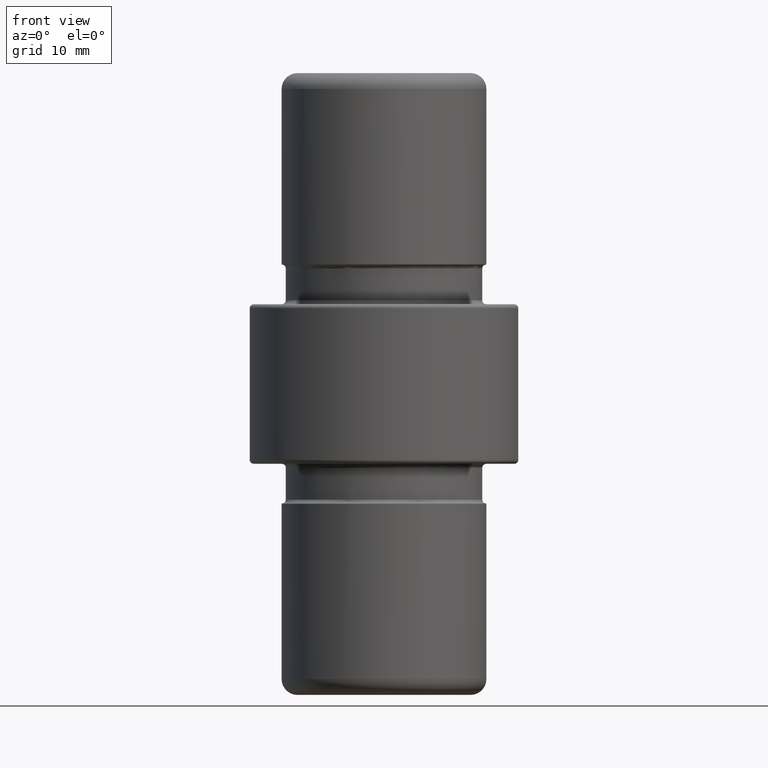
[diagram: clean part render]
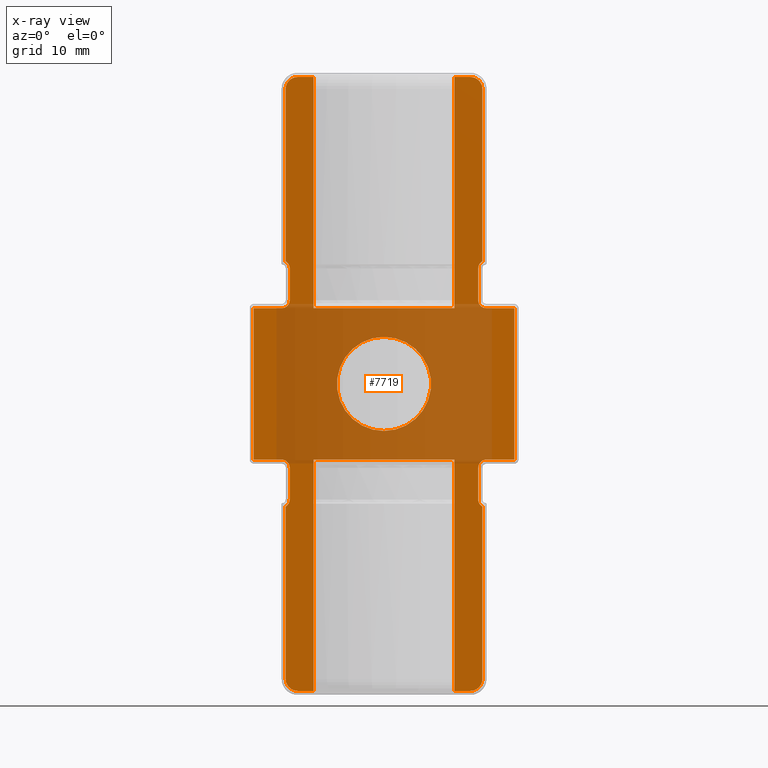
[diagram: x-ray — body ghosted, one internal face saturated and labeled with its STEP entity id]
A machine part, front view, then the same camera in x-ray: the body is ghosted and one INTERNAL B-rep face — a face not visible from any outside direction — is saturated and labeled: STEP entity #7719.
In plain terms, the highlighted planar face has unit normal (-0, 1, 0).
Its self-contained STEP definition (entity closure, byte-faithful):
#1 = EDGE_CURVE ( 'NONE', #120, #5513, #8050, .T. ) ;
#28 = VERTEX_POINT ( 'NONE', #3939 ) ;
#34 = DIRECTION ( 'NONE',  ( -0.000000000000000000, -1.000000000000000000, -0.000000000000000000 ) ) ;
#37 = CARTESIAN_POINT ( 'NONE',  ( -16.84933233098569971, 0.000000000000000000, -9.500000000000000000 ) ) ;
#62 = FACE_BOUND ( 'NONE', #3400, .T. ) ;
#77 = DIRECTION ( 'NONE',  ( 1.000000000000000000, 1.836970198721029688E-16, -0.000000000000000000 ) ) ;
#95 = CARTESIAN_POINT ( 'NONE',  ( 11.32770632754599660, 5.187487279834798235E-15, 38.42346631043297833 ) ) ;
#105 = CARTESIAN_POINT ( 'NONE',  ( -11.82635944855898558, 9.227051494001742720E-16, 10.00000000000000000 ) ) ;
#114 = CARTESIAN_POINT ( 'NONE',  ( -11.82635944855898202, 9.227051494001748636E-16, 10.49999999999999645 ) ) ;
#120 = VERTEX_POINT ( 'NONE', #8200 ) ;
#129 = VERTEX_POINT ( 'NONE', #5139 ) ;
#132 = EDGE_CURVE ( 'NONE', #129, #1827, #505, .T. ) ;
#155 = DIRECTION ( 'NONE',  ( -1.000000000000000000, -1.836970198721029688E-16, -0.000000000000000000 ) ) ;
#176 = CARTESIAN_POINT ( 'NONE',  ( -12.56573863816000802, 7.366857760101343353E-16, -9.525944670966111971 ) ) ;
#231 = ORIENTED_EDGE ( 'NONE', *, *, #1228, .T. ) ;
#286 = EDGE_CURVE ( 'NONE', #5851, #4348, #2631, .T. ) ;
#288 = CARTESIAN_POINT ( 'NONE',  ( -12.82751327523205909, 7.387961750067786748E-16, 9.500000000000000000 ) ) ;
#379 = CARTESIAN_POINT ( 'NONE',  ( -12.34503948960876762, 8.274251715921893212E-16, 10.00000000000000000 ) ) ;
#400 = EDGE_CURVE ( 'NONE', #5819, #5851, #9580, .T. ) ;
#412 = EDGE_CURVE ( 'NONE', #6214, #6734, #4355, .T. ) ;
#435 = CARTESIAN_POINT ( 'NONE',  ( 12.02237447391102343, 5.295673121770225717E-15, 9.885013749146752460 ) ) ;
#489 = VERTEX_POINT ( 'NONE', #6630 ) ;
#502 = LINE ( 'NONE', #1487, #4276 ) ;
#505 = B_SPLINE_CURVE_WITH_KNOTS ( 'NONE', 3,
 ( #688, #4344, #9719, #6682, #2865, #5881, #636, #2215 ),
 .UNSPECIFIED., .F., .F.,
 ( 4, 2, 2, 4 ),
 ( 3.469446951953614189E-18, 0.0003946217119678018816, 0.0007892434239356002938, 0.001578486847871197118 ),
 .UNSPECIFIED. ) ;
#510 = VECTOR ( 'NONE', #6872, 1000.000000000000000 ) ;
#515 = DIRECTION ( 'NONE',  ( 1.000000000000000000, 1.836970198721029688E-16, -0.000000000000000000 ) ) ;
#542 = CARTESIAN_POINT ( 'NONE',  ( -12.14707691400465528, 8.573676752678414412E-16, 37.75105812251798909 ) ) ;
#574 = CARTESIAN_POINT ( 'NONE',  ( -11.23935854233028842, 1.008921402915745847E-15, 38.46022153610800132 ) ) ;
#602 = ORIENTED_EDGE ( 'NONE', *, *, #5104, .T. ) ;
#624 = CARTESIAN_POINT ( 'NONE',  ( 11.82093666310629132, 5.266642973146254359E-15, -14.68042298348409957 ) ) ;
#630 = DIRECTION ( 'NONE',  ( 0.000000000000000000, 0.000000000000000000, -1.000000000000000000 ) ) ;
#636 = CARTESIAN_POINT ( 'NONE',  ( 12.55865299338266361, 5.402159264529006987E-15, -9.500000000000001776 ) ) ;
#688 = CARTESIAN_POINT ( 'NONE',  ( 11.82093666310625579, 5.266642973146247260E-15, -10.50000000000001776 ) ) ;
#805 = DIRECTION ( 'NONE',  ( 1.000000000000000000, 1.836970198721029688E-16, -0.000000000000000000 ) ) ;
#820 = CARTESIAN_POINT ( 'NONE',  ( -12.34503948960876407, 8.274251715921890254E-16, -37.19812953165480707 ) ) ;
#827 = VERTEX_POINT ( 'NONE', #3567 ) ;
#842 = CARTESIAN_POINT ( 'NONE',  ( 10.94341678214463442, 5.105445186135074839E-15, 38.50000000000000000 ) ) ;
#852 = CARTESIAN_POINT ( 'NONE',  ( 10.84435336938076588, 5.087247532431992333E-15, -38.50000000000000000 ) ) ;
#882 = DIRECTION ( 'NONE',  ( 1.000000000000000000, 1.836970198721029688E-16, 0.000000000000000000 ) ) ;
#888 = CARTESIAN_POINT ( 'NONE',  ( 12.03826662707112582, 5.302596582458411297E-15, -37.91406105640146507 ) ) ;
#971 = EDGE_CURVE ( 'NONE', #1737, #5344, #8889, .T. ) ;
#1096 = CARTESIAN_POINT ( 'NONE',  ( 12.56137338367252632, 5.443306909823021676E-15, 9.525807773505903242 ) ) ;
#1115 = CARTESIAN_POINT ( 'NONE',  ( -8.348652585896719103, 1.561549536059993372E-15, 9.500000000000000000 ) ) ;
#1134 = DIRECTION ( 'NONE',  ( 1.000000000000000000, 1.836970198721029688E-16, 0.000000000000000000 ) ) ;
#1184 = CARTESIAN_POINT ( 'NONE',  ( 16.34625339336203709, 6.097930170471603174E-15, 10.00000000000000000 ) ) ;
#1202 = CARTESIAN_POINT ( 'NONE',  ( -11.82635932629594322, 9.227051718595307736E-16, -14.49999999999999289 ) ) ;
#1205 = ORIENTED_EDGE ( 'NONE', *, *, #6367, .T. ) ;
#1228 = EDGE_CURVE ( 'NONE', #4498, #7017, #2537, .T. ) ;
#1366 = EDGE_CURVE ( 'NONE', #827, #3689, #7261, .T. ) ;
#1414 = ORIENTED_EDGE ( 'NONE', *, *, #4284, .T. ) ;
#1462 = CARTESIAN_POINT ( 'NONE',  ( -11.04082727738886582, 1.101804934473193733E-15, -38.49029282011349551 ) ) ;
#1485 = EDGE_CURVE ( 'NONE', #8409, #3112, #2328, .T. ) ;
#1487 = CARTESIAN_POINT ( 'NONE',  ( 8.843076387773654901, 4.719618914972128913E-15, -39.00000000000000000 ) ) ;
#1493 = CARTESIAN_POINT ( 'NONE',  ( -12.34503948960876762, 8.274251715921893212E-16, -37.00000000000000000 ) ) ;
#1511 = LINE ( 'NONE', #7031, #7186 ) ;
#1519 = VECTOR ( 'NONE', #6968, 1000.000000000000000 ) ;
#1555 = DIRECTION ( 'NONE',  ( 0.000000000000000000, 0.000000000000000000, -1.000000000000000000 ) ) ;
#1563 = CARTESIAN_POINT ( 'NONE',  ( -10.84435336938076588, 1.103096739641501484E-15, -38.50000000000000000 ) ) ;
#1594 = CARTESIAN_POINT ( 'NONE',  ( -16.34931191212645274, 9.185226081964420863E-17, 9.500000000000000000 ) ) ;
#1624 = CARTESIAN_POINT ( 'NONE',  ( 11.23935854233043408, 5.171030980251634555E-15, -38.46022153610797290 ) ) ;
#1634 = VECTOR ( 'NONE', #630, 1000.000000000000000 ) ;
#1650 = CARTESIAN_POINT ( 'NONE',  ( -12.34503948960878539, 8.274251715921857713E-16, -15.37621303987383037 ) ) ;
#1715 = PLANE ( 'NONE',  #1793 ) ;
#1721 = CARTESIAN_POINT ( 'NONE',  ( -11.95288557991027645, 8.581328193686945245E-16, 9.996053730219898625 ) ) ;
#1737 = VERTEX_POINT ( 'NONE', #6213 ) ;
#1787 = CARTESIAN_POINT ( 'NONE',  ( -12.34503948960876762, 8.274251715921893212E-16, 15.37621297546583499 ) ) ;
#1793 = AXIS2_PLACEMENT_3D ( 'NONE', #6215, #9297, #4676 ) ;
#1827 = VERTEX_POINT ( 'NONE', #4444 ) ;
#1846 = VECTOR ( 'NONE', #155, 1000.000000000000000 ) ;
#1882 = CARTESIAN_POINT ( 'NONE',  ( -11.92048647801271954, 8.756486130058074489E-16, -14.93247947804205822 ) ) ;
#1896 = CARTESIAN_POINT ( 'NONE',  ( 12.34503948960878184, 5.362919100481306271E-15, 15.37888091013495284 ) ) ;
#1949 = ORIENTED_EDGE ( 'NONE', *, *, #1485, .T. ) ;
#2050 = CARTESIAN_POINT ( 'NONE',  ( -16.34625339336203709, 9.241410160189053220E-17, -9.500000000000000000 ) ) ;
#2063 = ORIENTED_EDGE ( 'NONE', *, *, #7302, .T. ) ;
#2100 = CARTESIAN_POINT ( 'NONE',  ( -12.03826662707108675, 8.773558007089663435E-16, 37.91406105640152902 ) ) ;
#2108 = ORIENTED_EDGE ( 'NONE', *, *, #1366, .T. ) ;
#2139 = CARTESIAN_POINT ( 'NONE',  ( 12.34503948960876762, 5.362919100481304693E-15, -15.37903812353133048 ) ) ;
#2145 = LINE ( 'NONE', #2717, #4576 ) ;
#2152 = DIRECTION ( 'NONE',  ( -1.000000000000000000, -1.836970198721029688E-16, -0.000000000000000000 ) ) ;
#2191 = CARTESIAN_POINT ( 'NONE',  ( -8.843076387773654901, 1.470725357101365102E-15, -38.50000000000000000 ) ) ;
#2204 = CARTESIAN_POINT ( 'NONE',  ( 11.87017653939025941, 5.295759667921073000E-15, -14.85763162654438752 ) ) ;
#2212 = EDGE_CURVE ( 'NONE', #2744, #9574, #4763, .T. ) ;
#2215 = CARTESIAN_POINT ( 'NONE',  ( 12.82255779387073780, 5.450637789908608255E-15, -9.500000000000001776 ) ) ;
#2219 = CARTESIAN_POINT ( 'NONE',  ( 8.843076387773654901, 4.719618914972128913E-15, 9.500000000000000000 ) ) ;
#2222 = CARTESIAN_POINT ( 'NONE',  ( -12.34503948960877295, 8.274251715921885323E-16, 37.00000000000000000 ) ) ;
#2255 = CARTESIAN_POINT ( 'NONE',  ( 11.83578403412251134, 5.299874795469960530E-15, 38.13029582909724269 ) ) ;
#2257 = VERTEX_POINT ( 'NONE', #8100 ) ;
#2269 = CARTESIAN_POINT ( 'NONE',  ( -12.04344961929964342, 8.419300385703797728E-16, -37.92291959823978686 ) ) ;
#2328 = LINE ( 'NONE', #37, #2568 ) ;
#2340 = CARTESIAN_POINT ( 'NONE',  ( 12.34503948960876762, 5.362919100481304693E-15, 37.00000000000000000 ) ) ;
#2342 = VERTEX_POINT ( 'NONE', #9380 ) ;
#2351 = CARTESIAN_POINT ( 'NONE',  ( 12.29722961732077557, 5.309092255131945705E-15, -37.38811316196071743 ) ) ;
#2382 = VECTOR ( 'NONE', #7932, 1000.000000000000000 ) ;
#2390 = CARTESIAN_POINT ( 'NONE',  ( 11.82093666310625402, 5.266642973146247260E-15, 10.00000000000000000 ) ) ;
#2406 = CARTESIAN_POINT ( 'NONE',  ( -11.88521055177758790, 8.630497903386840490E-16, 14.84932256496422909 ) ) ;
#2438 = CARTESIAN_POINT ( 'NONE',  ( 12.34503948960876762, 5.362919100481304693E-15, -15.37903812353133048 ) ) ;
#2480 = LINE ( 'NONE', #9168, #3741 ) ;
#2512 = CARTESIAN_POINT ( 'NONE',  ( -11.82635932629594322, 9.227051718595307736E-16, -14.49999999999999289 ) ) ;
#2532 = ORIENTED_EDGE ( 'NONE', *, *, #3510, .T. ) ;
#2537 = LINE ( 'NONE', #1594, #510 ) ;
#2568 = VECTOR ( 'NONE', #805, 1000.000000000000000 ) ;
#2594 = EDGE_CURVE ( 'NONE', #7889, #827, #5835, .T. ) ;
#2615 = CARTESIAN_POINT ( 'NONE',  ( 11.82124216661149596, 5.266699093229719939E-15, 14.50000000000002132 ) ) ;
#2631 = LINE ( 'NONE', #9405, #4474 ) ;
#2640 = CARTESIAN_POINT ( 'NONE',  ( -12.05582141741196089, 8.507879879535951521E-16, -15.16123784198762436 ) ) ;
#2673 = LINE ( 'NONE', #2888, #8701 ) ;
#2717 = CARTESIAN_POINT ( 'NONE',  ( -8.843076387773654901, 1.470725357101365102E-15, -10.00000000000001599 ) ) ;
#2731 = CARTESIAN_POINT ( 'NONE',  ( 11.82124216661147109, 5.266699093229715994E-15, 10.50000000000001599 ) ) ;
#2730 = LINE ( 'NONE', #9411, #7092 ) ;
#2744 = VERTEX_POINT ( 'NONE', #7842 ) ;
#2762 = CARTESIAN_POINT ( 'NONE',  ( -11.82635932629594322, 9.227051718595307736E-16, -10.50000000000000000 ) ) ;
#2800 = VECTOR ( 'NONE', #1134, 1000.000000000000000 ) ;
#2810 = LINE ( 'NONE', #5253, #3387 ) ;
#2844 = CARTESIAN_POINT ( 'NONE',  ( -12.29722961732077025, 8.708601280354297660E-16, 37.38811316196074586 ) ) ;
#2865 = CARTESIAN_POINT ( 'NONE',  ( 12.02270341078740934, 5.295594209867348071E-15, -9.884112651660599269 ) ) ;
#2875 = CARTESIAN_POINT ( 'NONE',  ( -11.60016404371364729, 9.426425075581619373E-16, 38.31050610077146246 ) ) ;
#2882 = ORIENTED_EDGE ( 'NONE', *, *, #1, .T. ) ;
#2888 = CARTESIAN_POINT ( 'NONE',  ( -16.34625339336203709, 9.241410160189053220E-17, 10.00000000000000000 ) ) ;
#2917 = CARTESIAN_POINT ( 'NONE',  ( 12.18638736811393208, 5.333775178566316052E-15, -15.29313135559192283 ) ) ;
#2936 = EDGE_CURVE ( 'NONE', #8522, #1737, #4509, .T. ) ;
#2955 = CARTESIAN_POINT ( 'NONE',  ( -12.34503948960876762, 8.274251715921893212E-16, -37.00000000000000000 ) ) ;
#3004 = CARTESIAN_POINT ( 'NONE',  ( 10.84435336938076588, 5.087247532431992333E-15, 38.50000000000000000 ) ) ;
#3005 = VECTOR ( 'NONE', #77, 1000.000000000000000 ) ;
#3065 = CARTESIAN_POINT ( 'NONE',  ( 12.34503948960876407, 5.362919100481305482E-15, 37.19812953165480707 ) ) ;
#3067 = VERTEX_POINT ( 'NONE', #4606 ) ;
#3086 = VERTEX_POINT ( 'NONE', #7014 ) ;
#3112 = VERTEX_POINT ( 'NONE', #9218 ) ;
#3150 = VECTOR ( 'NONE', #2152, 1000.000000000000000 ) ;
#3170 = CARTESIAN_POINT ( 'NONE',  ( 11.97493497528827966, 5.325296923462063340E-15, -37.99123931512421137 ) ) ;
#3223 = CARTESIAN_POINT ( 'NONE',  ( 12.34503948960877295, 5.362919100481304693E-15, -37.00000000000000000 ) ) ;
#3229 = ORIENTED_EDGE ( 'NONE', *, *, #7751, .T. ) ;
#3234 = CARTESIAN_POINT ( 'NONE',  ( -12.56325973110938321, 7.873387635527557990E-16, 9.500000000000005329 ) ) ;
#3298 = VECTOR ( 'NONE', #8235, 1000.000000000000000 ) ;
#3314 = EDGE_CURVE ( 'NONE', #8606, #129, #3453, .T. ) ;
#3329 = VECTOR ( 'NONE', #9474, 1000.000000000000000 ) ;
#3345 = CARTESIAN_POINT ( 'NONE',  ( -8.348652585896719103, 1.561549536059993372E-15, -38.50000000000000000 ) ) ;
#3359 = CARTESIAN_POINT ( 'NONE',  ( 11.87034413660803445, 5.295658098159756420E-15, 14.85768937963660896 ) ) ;
#3378 = CARTESIAN_POINT ( 'NONE',  ( 12.34503948960876762, 5.362919100481304693E-15, 37.00000000000000000 ) ) ;
#3387 = VECTOR ( 'NONE', #7619, 1000.000000000000000 ) ;
#3400 = EDGE_LOOP ( 'NONE', ( #9430 ) ) ;
#3425 = CARTESIAN_POINT ( 'NONE',  ( -12.34503948960877295, 8.274251715921885323E-16, 37.00000000000000000 ) ) ;
#3435 = ORIENTED_EDGE ( 'NONE', *, *, #9407, .T. ) ;
#3439 = CARTESIAN_POINT ( 'NONE',  ( 12.31862532590847259, 5.398714815032023453E-15, 9.626059392481051802 ) ) ;
#3450 = DIRECTION ( 'NONE',  ( 0.000000000000000000, 0.000000000000000000, -1.000000000000000000 ) ) ;
#3453 = LINE ( 'NONE', #2390, #4151 ) ;
#3470 = CARTESIAN_POINT ( 'NONE',  ( 11.84777499783467647, 5.303409613250930499E-15, 10.23689767566536801 ) ) ;
#3492 = CARTESIAN_POINT ( 'NONE',  ( 11.82124216661147109, 5.266699093229715994E-15, 10.50000000000001599 ) ) ;
#3510 = EDGE_CURVE ( 'NONE', #3067, #4498, #9162, .T. ) ;
#3567 = CARTESIAN_POINT ( 'NONE',  ( -10.84435336938058647, 1.103096739641534616E-15, 38.50000000000000000 ) ) ;
#3604 = CARTESIAN_POINT ( 'NONE',  ( -11.97493497528822459, 8.546554597053112434E-16, 37.99123931512427532 ) ) ;
#3624 = CARTESIAN_POINT ( 'NONE',  ( 11.82124216661149596, 5.266699093229719939E-15, 14.50000000000002132 ) ) ;
#3656 = ORIENTED_EDGE ( 'NONE', *, *, #2936, .T. ) ;
#3689 = VERTEX_POINT ( 'NONE', #3425 ) ;
#3741 = VECTOR ( 'NONE', #7622, 1000.000000000000000 ) ;
#3757 = CARTESIAN_POINT ( 'NONE',  ( 0.000000000000000000, -2.112515728529184905E-16, 0.000000000000000000 ) ) ;
#3775 = CARTESIAN_POINT ( 'NONE',  ( -11.83578403412251134, 8.800775876974157302E-16, -38.13029582909724269 ) ) ;
#3840 = CARTESIAN_POINT ( 'NONE',  ( -11.82635932629594322, 9.227051718595307736E-16, -10.50000000000000000 ) ) ;
#3909 = CARTESIAN_POINT ( 'NONE',  ( -12.30415240920443765, 8.334498332595701003E-16, 9.608524622417297323 ) ) ;
#3939 = CARTESIAN_POINT ( 'NONE',  ( -8.843076387773654901, 1.470725357101365102E-15, -9.500000000000000000 ) ) ;
#3974 = CARTESIAN_POINT ( 'NONE',  ( -16.84933233098569971, 0.000000000000000000, -9.500000000000000000 ) ) ;
#4030 = CARTESIAN_POINT ( 'NONE',  ( -12.05582148165954948, 8.507879920915779480E-16, 15.16123777101950587 ) ) ;
#4037 = ORIENTED_EDGE ( 'NONE', *, *, #2594, .T. ) ;
#4118 = CARTESIAN_POINT ( 'NONE',  ( 11.94773341778545017, 5.321771677107012954E-15, 9.996441717516317382 ) ) ;
#4151 = VECTOR ( 'NONE', #9210, 1000.000000000000000 ) ;
#4242 = CARTESIAN_POINT ( 'NONE',  ( 12.82283400357469105, 5.450688528808084514E-15, 9.500000000000000000 ) ) ;
#4276 = VECTOR ( 'NONE', #5354, 1000.000000000000000 ) ;
#4284 = EDGE_CURVE ( 'NONE', #9298, #7765, #9031, .T. ) ;
#4318 = CIRCLE ( 'NONE', #5141, 5.899999999999996803 ) ;
#4344 = CARTESIAN_POINT ( 'NONE',  ( 11.82093666310621494, 5.266642973146239371E-15, -10.36804244063031710 ) ) ;
#4348 = VERTEX_POINT ( 'NONE', #3378 ) ;
#4355 = LINE ( 'NONE', #1115, #2382 ) ;
#4357 = CARTESIAN_POINT ( 'NONE',  ( -12.19313444586737027, 8.742747835750054387E-16, 37.66493053758035359 ) ) ;
#4444 = CARTESIAN_POINT ( 'NONE',  ( 12.82255779387073780, 5.450637789908608255E-15, -9.500000000000001776 ) ) ;
#4474 = VECTOR ( 'NONE', #5618, 1000.000000000000000 ) ;
#4480 = CARTESIAN_POINT ( 'NONE',  ( 11.23247722358772727, 5.113352972669560139E-15, 38.45225569363751816 ) ) ;
#4488 = EDGE_CURVE ( 'NONE', #3112, #6046, #5286, .T. ) ;
#4489 = EDGE_CURVE ( 'NONE', #2257, #7374, #8131, .T. ) ;
#4497 = CARTESIAN_POINT ( 'NONE',  ( -10.94341678214463442, 1.084899085938419176E-15, -38.50000000000000000 ) ) ;
#4498 = VERTEX_POINT ( 'NONE', #7592 ) ;
#4503 = ORIENTED_EDGE ( 'NONE', *, *, #4488, .T. ) ;
#4509 = LINE ( 'NONE', #5882, #3150 ) ;
#4549 = CARTESIAN_POINT ( 'NONE',  ( 11.04082727738886582, 5.078147448694183119E-15, 38.49029282011349551 ) ) ;
#4562 = CARTESIAN_POINT ( 'NONE',  ( 11.76742570335882299, 5.287178088612791655E-15, -38.19875620558220675 ) ) ;
#4576 = VECTOR ( 'NONE', #8762, 1000.000000000000000 ) ;
#4593 = CARTESIAN_POINT ( 'NONE',  ( 12.34503948960877295, 5.362919100481304693E-15, -37.00000000000000000 ) ) ;
#4606 = CARTESIAN_POINT ( 'NONE',  ( -11.82635944855898202, 9.227051494001748636E-16, 10.49999999999999645 ) ) ;
#4625 = CARTESIAN_POINT ( 'NONE',  ( 12.33531831412664737, 5.316089035225996959E-15, -37.19647229652363762 ) ) ;
#4676 = DIRECTION ( 'NONE',  ( -1.000000000000000000, -1.836970198721029688E-16, 0.000000000000000000 ) ) ;
#4682 = EDGE_CURVE ( 'NONE', #5163, #5163, #4318, .T. ) ;
#4763 = LINE ( 'NONE', #3345, #2800 ) ;
#4775 = CARTESIAN_POINT ( 'NONE',  ( -11.83826425234691193, 8.716736856381230454E-16, 14.67764585222535523 ) ) ;
#4788 = ORIENTED_EDGE ( 'NONE', *, *, #7459, .T. ) ;
#4829 = CARTESIAN_POINT ( 'NONE',  ( 11.82124216661154215, 5.266699093229730983E-15, 14.68043585912862525 ) ) ;
#4930 = VERTEX_POINT ( 'NONE', #2438 ) ;
#5014 = ORIENTED_EDGE ( 'NONE', *, *, #7610, .T. ) ;
#5055 = CARTESIAN_POINT ( 'NONE',  ( -11.76742570335873772, 8.927742945545879575E-16, 38.19875620558227070 ) ) ;
#5104 = EDGE_CURVE ( 'NONE', #7765, #5492, #9429, .T. ) ;
#5107 = CARTESIAN_POINT ( 'NONE',  ( 16.34625339336203709, 6.097930170471603174E-15, 9.500000000000000000 ) ) ;
#5139 = CARTESIAN_POINT ( 'NONE',  ( 11.82093666310625579, 5.266642973146247260E-15, -10.50000000000001776 ) ) ;
#5141 = AXIS2_PLACEMENT_3D ( 'NONE', #3757, #34, #9608 ) ;
#5163 = VERTEX_POINT ( 'NONE', #5847 ) ;
#5253 = CARTESIAN_POINT ( 'NONE',  ( -11.82635932629594322, 9.227051718595307736E-16, 10.00000000000000000 ) ) ;
#5286 = B_SPLINE_CURVE_WITH_KNOTS ( 'NONE', 3,
 ( #6739, #6774, #176, #6839, #7693, #6936, #8450, #3840 ),
 .UNSPECIFIED., .F., .F.,
 ( 4, 2, 2, 4 ),
 ( 0.000000000000000000, 0.0003907645425672621022, 0.0007815290851345242044, 0.001563058170269048409 ),
 .UNSPECIFIED. ) ;
#5301 = ORIENTED_EDGE ( 'NONE', *, *, #286, .T. ) ;
#5307 = CARTESIAN_POINT ( 'NONE',  ( -10.84896308409241250, 1.102249948786511365E-15, 38.50000000000000000 ) ) ;
#5313 = CARTESIAN_POINT ( 'NONE',  ( 12.34503948960876762, 5.362919100481304693E-15, -15.00000000000000711 ) ) ;
#5344 = VERTEX_POINT ( 'NONE', #3492 ) ;
#5354 = DIRECTION ( 'NONE',  ( 0.000000000000000000, 0.000000000000000000, -1.000000000000000000 ) ) ;
#5410 = VECTOR ( 'NONE', #3450, 1000.000000000000000 ) ;
#5415 = B_SPLINE_CURVE_WITH_KNOTS ( 'NONE', 3,
 ( #2139, #2917, #8190, #2204, #624, #9578 ),
 .UNSPECIFIED., .F., .F.,
 ( 4, 2, 4 ),
 ( 2.073536654878527230E-18, 0.0005398857903278183115, 0.001079771580655634671 ),
 .UNSPECIFIED. ) ;
#5422 = CARTESIAN_POINT ( 'NONE',  ( -12.02724069267976859, 8.843176903528204679E-16, 9.885154462436428702 ) ) ;
#5492 = VERTEX_POINT ( 'NONE', #6892 ) ;
#5495 = FACE_OUTER_BOUND ( 'NONE', #7590, .T. ) ;
#5513 = VERTEX_POINT ( 'NONE', #3223 ) ;
#5550 = CARTESIAN_POINT ( 'NONE',  ( 12.00860887572306446, 5.321056918688580563E-15, 15.08924679661668833 ) ) ;
#5618 = DIRECTION ( 'NONE',  ( -0.000000000000000000, -0.000000000000000000, 1.000000000000000000 ) ) ;
#5681 = EDGE_CURVE ( 'NONE', #3689, #8004, #6387, .T. ) ;
#5699 = CARTESIAN_POINT ( 'NONE',  ( 12.19406611942411267, 5.324401417211888711E-15, 15.28345743863416217 ) ) ;
#5706 = B_SPLINE_CURVE_WITH_KNOTS ( 'NONE', 3,
 ( #6177, #7057, #4030, #8548, #2406, #4775, #7023, #6210 ),
 .UNSPECIFIED., .F., .F.,
 ( 4, 2, 2, 4 ),
 ( 1.843143693225357538E-17, 0.0005387903794359260755, 0.0008081855691538811443, 0.001077580758871836322 ),
 .UNSPECIFIED. ) ;
#5774 = ORIENTED_EDGE ( 'NONE', *, *, #9653, .T. ) ;
#5796 = CARTESIAN_POINT ( 'NONE',  ( -10.84435336938058647, 1.103096739641534616E-15, 38.50000000000000000 ) ) ;
#5799 = VERTEX_POINT ( 'NONE', #6681 ) ;
#5819 = VERTEX_POINT ( 'NONE', #3624 ) ;
#5835 = LINE ( 'NONE', #5307, #1846 ) ;
#5847 = CARTESIAN_POINT ( 'NONE',  ( 0.000000000000000000, -2.112515728529184905E-16, -5.899999999999996803 ) ) ;
#5851 = VERTEX_POINT ( 'NONE', #8294 ) ;
#5881 = CARTESIAN_POINT ( 'NONE',  ( 12.30027626401263774, 5.346583515802218249E-15, -9.607708683565910235 ) ) ;
#5882 = CARTESIAN_POINT ( 'NONE',  ( 12.84967984512282158, 5.455620029896434479E-15, 9.500000000000000000 ) ) ;
#5883 = ORIENTED_EDGE ( 'NONE', *, *, #7611, .T. ) ;
#5951 = CARTESIAN_POINT ( 'NONE',  ( -12.33531831412664559, 8.638633479413773284E-16, 37.19647229652363762 ) ) ;
#5962 = CARTESIAN_POINT ( 'NONE',  ( 8.843076387773654901, 4.719618914972128913E-15, -9.500000000000000000 ) ) ;
#6046 = VERTEX_POINT ( 'NONE', #2762 ) ;
#6058 = CARTESIAN_POINT ( 'NONE',  ( -11.75855861926665114, 9.608050417213193765E-16, -38.19357721414428397 ) ) ;
#6083 = VECTOR ( 'NONE', #9235, 1000.000000000000000 ) ;
#6089 = CARTESIAN_POINT ( 'NONE',  ( -11.50934398402228176, 9.590988071413313363E-16, -38.34828589976977042 ) ) ;
#6119 = CARTESIAN_POINT ( 'NONE',  ( 11.04247875020536718, 5.123642574450498522E-15, -38.50000000000000711 ) ) ;
#6139 = ORIENTED_EDGE ( 'NONE', *, *, #7206, .T. ) ;
#6146 = EDGE_CURVE ( 'NONE', #2342, #3086, #2480, .T. ) ;
#6154 = CARTESIAN_POINT ( 'NONE',  ( 12.14707691400467660, 5.322584707899532945E-15, -37.75105812251793935 ) ) ;
#6177 = CARTESIAN_POINT ( 'NONE',  ( -12.34503948960876762, 8.274251715921893212E-16, 15.37621297546583499 ) ) ;
#6210 = CARTESIAN_POINT ( 'NONE',  ( -11.82635944855897492, 9.227051494001762441E-16, 14.49999999999999467 ) ) ;
#6213 = CARTESIAN_POINT ( 'NONE',  ( 12.82283400357469105, 5.450688528808084514E-15, 9.500000000000000000 ) ) ;
#6214 = VERTEX_POINT ( 'NONE', #2219 ) ;
#6215 = CARTESIAN_POINT ( 'NONE',  ( -16.84933233098569971, 0.000000000000000000, 10.00000000000000000 ) ) ;
#6224 = CARTESIAN_POINT ( 'NONE',  ( -11.82635944855897669, 9.227051494001746664E-16, 10.36786894297910955 ) ) ;
#6245 = ORIENTED_EDGE ( 'NONE', *, *, #7221, .T. ) ;
#6297 = LINE ( 'NONE', #7430, #8310 ) ;
#6349 = CARTESIAN_POINT ( 'NONE',  ( -16.34625339336203709, 9.241410160189053220E-17, 9.500000000000000000 ) ) ;
#6367 = EDGE_CURVE ( 'NONE', #6734, #7889, #9553, .T. ) ;
#6375 = LINE ( 'NONE', #5313, #3298 ) ;
#6377 = CARTESIAN_POINT ( 'NONE',  ( 11.82093666310628599, 5.266642973146252782E-15, -14.50000000000001776 ) ) ;
#6378 = ORIENTED_EDGE ( 'NONE', *, *, #5681, .T. ) ;
#6387 = LINE ( 'NONE', #379, #5410 ) ;
#6404 = CARTESIAN_POINT ( 'NONE',  ( 12.26572262263666246, 5.348348828392936151E-15, 15.33589745728379228 ) ) ;
#6511 = ORIENTED_EDGE ( 'NONE', *, *, #971, .T. ) ;
#6545 = ORIENTED_EDGE ( 'NONE', *, *, #7800, .T. ) ;
#6547 = LINE ( 'NONE', #3974, #3005 ) ;
#6630 = CARTESIAN_POINT ( 'NONE',  ( 8.843076387773654901, 4.719618914972128913E-15, -38.50000000000000000 ) ) ;
#6681 = CARTESIAN_POINT ( 'NONE',  ( -11.82635944855897492, 9.227051494001762441E-16, 14.49999999999999467 ) ) ;
#6682 = CARTESIAN_POINT ( 'NONE',  ( 11.94728949952203401, 5.321774609567546109E-15, -9.996644994738145940 ) ) ;
#6724 = CARTESIAN_POINT ( 'NONE',  ( -12.26840018062360294, 8.604486924018019515E-16, 37.48333772867023583 ) ) ;
#6729 = EDGE_CURVE ( 'NONE', #1827, #2342, #2730, .T. ) ;
#6734 = VERTEX_POINT ( 'NONE', #7210 ) ;
#6739 = CARTESIAN_POINT ( 'NONE',  ( -12.82751316267203734, 7.387961956837192452E-16, -9.500000000000000000 ) ) ;
#6773 = CARTESIAN_POINT ( 'NONE',  ( -12.30520043914433437, 8.535944526017852624E-16, -37.39500339352397162 ) ) ;
#6774 = CARTESIAN_POINT ( 'NONE',  ( -12.69538371994902981, 7.630679805492967277E-16, -9.499999999999847233 ) ) ;
#6789 = CARTESIAN_POINT ( 'NONE',  ( 12.04344961929964342, 5.338022344596995698E-15, 37.92291959823978686 ) ) ;
#6838 = CARTESIAN_POINT ( 'NONE',  ( -11.59549757966935957, 9.907588687525886047E-16, -38.30227765311577315 ) ) ;
#6839 = CARTESIAN_POINT ( 'NONE',  ( -12.32342937538356331, 7.811972654695718723E-16, -9.626139212542208057 ) ) ;
#6872 = DIRECTION ( 'NONE',  ( -1.000000000000000000, -1.836970198721029688E-16, -0.000000000000000000 ) ) ;
#6877 = EDGE_CURVE ( 'NONE', #5513, #4930, #6375, .T. ) ;
#6889 = CARTESIAN_POINT ( 'NONE',  ( 11.75855861926665114, 5.219147341446056292E-15, 38.19357721414428397 ) ) ;
#6892 = CARTESIAN_POINT ( 'NONE',  ( -12.34503948960876762, 8.274251715921893212E-16, -37.00000000000000000 ) ) ;
#6902 = CARTESIAN_POINT ( 'NONE',  ( 12.34503948960877651, 5.362919100481306271E-15, -37.09906398212305589 ) ) ;
#6936 = CARTESIAN_POINT ( 'NONE',  ( -11.93529363919648745, 9.013010467660509935E-16, -9.976744504734819330 ) ) ;
#6957 = B_SPLINE_CURVE_WITH_KNOTS ( 'NONE', 3,
 ( #1493, #820, #6773, #8220, #2269, #3775, #6058, #6838, #6089, #8284, #9040, #1462, #4497, #1563 ),
 .UNSPECIFIED., .F., .F.,
 ( 4, 2, 2, 2, 2, 2, 4 ),
 ( 0.000000000000000000, 0.0005907640857441630962, 0.001181528171488326192, 0.001476910214360407795, 0.001772292257232489180, 0.002067674300104570782, 0.002363056342976652385 ),
 .UNSPECIFIED. ) ;
#6968 = DIRECTION ( 'NONE',  ( -1.000000000000000000, -1.836970198721029688E-16, -0.000000000000000000 ) ) ;
#6983 = DIRECTION ( 'NONE',  ( -0.000000000000000000, -0.000000000000000000, 1.000000000000000000 ) ) ;
#7014 = CARTESIAN_POINT ( 'NONE',  ( 16.34625339336203709, 6.097930170471603174E-15, -9.500000000000000000 ) ) ;
#7017 = VERTEX_POINT ( 'NONE', #6349 ) ;
#7023 = CARTESIAN_POINT ( 'NONE',  ( -11.82635944855897492, 9.227051494001762441E-16, 14.58983688731875539 ) ) ;
#7031 = CARTESIAN_POINT ( 'NONE',  ( 10.84896308409241250, 5.088094323286982452E-15, -38.50000000000000000 ) ) ;
#7057 = CARTESIAN_POINT ( 'NONE',  ( -12.18756876850595283, 8.563520737758882682E-16, 15.28970253917466238 ) ) ;
#7066 = ORIENTED_EDGE ( 'NONE', *, *, #3314, .T. ) ;
#7092 = VECTOR ( 'NONE', #515, 1000.000000000000000 ) ;
#7129 = LINE ( 'NONE', #8938, #3329 ) ;
#7182 = B_SPLINE_CURVE_WITH_KNOTS ( 'NONE', 3,
 ( #2340, #3065, #9792, #8335, #6789, #2255, #6889, #7612, #9027, #95, #4480, #4549, #842, #3004 ),
 .UNSPECIFIED., .F., .F.,
 ( 4, 2, 2, 2, 2, 2, 4 ),
 ( 0.000000000000000000, 0.0005907640857441630962, 0.001181528171488326192, 0.001476910214360407795, 0.001772292257232489180, 0.002067674300104570782, 0.002363056342976652385 ),
 .UNSPECIFIED. ) ;
#7186 = VECTOR ( 'NONE', #882, 1000.000000000000000 ) ;
#7189 = CARTESIAN_POINT ( 'NONE',  ( 12.69083060994647205, 5.426439898785576143E-15, 9.500000000000001776 ) ) ;
#7206 = EDGE_CURVE ( 'NONE', #7017, #8409, #2673, .T. ) ;
#7210 = CARTESIAN_POINT ( 'NONE',  ( -8.843076387773654901, 1.470725357101365102E-15, 9.500000000000000000 ) ) ;
#7221 = EDGE_CURVE ( 'NONE', #4930, #8606, #5415, .T. ) ;
#7261 = B_SPLINE_CURVE_WITH_KNOTS ( 'NONE', 3,
 ( #5796, #7495, #574, #2875, #5055, #3604, #2100, #542, #4357, #6724, #2844, #5951, #9654, #2222 ),
 .UNSPECIFIED., .F., .F.,
 ( 4, 2, 2, 2, 2, 2, 4 ),
 ( 0.000000000000000000, 0.0005907298640423070107, 0.001181459728084614021, 0.001476824660105758094, 0.001772189592126902601, 0.002067554524148046673, 0.002362919456169191180 ),
 .UNSPECIFIED. ) ;
#7262 = CARTESIAN_POINT ( 'NONE',  ( -12.34503948960878539, 8.274251715921857713E-16, -15.37621303987383037 ) ) ;
#7302 = EDGE_CURVE ( 'NONE', #5492, #2744, #6957, .T. ) ;
#7329 = DIRECTION ( 'NONE',  ( -0.000000000000000000, -0.000000000000000000, 1.000000000000000000 ) ) ;
#7359 = VERTEX_POINT ( 'NONE', #5962 ) ;
#7374 = VERTEX_POINT ( 'NONE', #7471 ) ;
#7430 = CARTESIAN_POINT ( 'NONE',  ( 8.843076387773654901, 4.719618914972128913E-15, 10.00000000000000000 ) ) ;
#7459 = EDGE_CURVE ( 'NONE', #28, #7359, #6547, .T. ) ;
#7471 = CARTESIAN_POINT ( 'NONE',  ( 8.843076387773654901, 4.719618914972128913E-15, 38.50000000000000000 ) ) ;
#7495 = CARTESIAN_POINT ( 'NONE',  ( -11.04247875020521263, 1.066701697623026653E-15, 38.50000000000003553 ) ) ;
#7538 = ORIENTED_EDGE ( 'NONE', *, *, #6729, .T. ) ;
#7568 = EDGE_CURVE ( 'NONE', #5344, #5819, #7129, .T. ) ;
#7590 = EDGE_LOOP ( 'NONE', ( #5774, #3229, #2532, #231, #6139, #1949, #4503, #9422, #1414, #602, #2063, #9119, #3435, #4788, #5014, #6545, #2882, #9707, #6245, #7066, #9176, #7538, #9457, #7797, #3656, #6511, #7878, #8023, #5301, #7707, #9241, #5883, #7808, #1205, #4037, #2108, #6378 ) ) ;
#7592 = CARTESIAN_POINT ( 'NONE',  ( -12.82751327523205909, 7.387961750067786748E-16, 9.500000000000000000 ) ) ;
#7610 = EDGE_CURVE ( 'NONE', #7359, #489, #502, .T. ) ;
#7611 = EDGE_CURVE ( 'NONE', #7374, #6214, #6297, .T. ) ;
#7612 = CARTESIAN_POINT ( 'NONE',  ( 11.59549757966935957, 5.189193514414787064E-15, 38.30227765311577315 ) ) ;
#7619 = DIRECTION ( 'NONE',  ( 0.000000000000000000, 0.000000000000000000, -1.000000000000000000 ) ) ;
#7622 = DIRECTION ( 'NONE',  ( 1.000000000000000000, 1.836970198721029688E-16, -0.000000000000000000 ) ) ;
#7693 = CARTESIAN_POINT ( 'NONE',  ( -12.21242912676136250, 8.503920835995798241E-16, -9.700286607830799213 ) ) ;
#7707 = ORIENTED_EDGE ( 'NONE', *, *, #9591, .T. ) ;
#7712 = EDGE_CURVE ( 'NONE', #6046, #9298, #2810, .T. ) ;
#7718 = CARTESIAN_POINT ( 'NONE',  ( -8.843076387773654901, 1.470725357101365102E-15, 38.50000000000000000 ) ) ;
#7719 = ADVANCED_FACE ( 'NONE', ( #5495, #62 ), #1715, .F. ) ;
#7724 = CARTESIAN_POINT ( 'NONE',  ( 12.19313444586739514, 5.305677599592370624E-15, -37.66493053758033227 ) ) ;
#7751 = EDGE_CURVE ( 'NONE', #5799, #3067, #9768, .T. ) ;
#7752 = CARTESIAN_POINT ( 'NONE',  ( 11.60016404371375209, 5.237309875609210378E-15, -38.31050610077140561 ) ) ;
#7765 = VERTEX_POINT ( 'NONE', #1650 ) ;
#7796 = VECTOR ( 'NONE', #7329, 1000.000000000000000 ) ;
#7797 = ORIENTED_EDGE ( 'NONE', *, *, #9450, .T. ) ;
#7800 = EDGE_CURVE ( 'NONE', #489, #120, #1511, .T. ) ;
#7808 = ORIENTED_EDGE ( 'NONE', *, *, #412, .T. ) ;
#7842 = CARTESIAN_POINT ( 'NONE',  ( -10.84435336938076588, 1.103096739641501484E-15, -38.50000000000000000 ) ) ;
#7878 = ORIENTED_EDGE ( 'NONE', *, *, #7568, .T. ) ;
#7889 = VERTEX_POINT ( 'NONE', #7718 ) ;
#7913 = CARTESIAN_POINT ( 'NONE',  ( -11.82635932629593789, 9.227051718595319569E-16, -14.58983689873288725 ) ) ;
#7932 = DIRECTION ( 'NONE',  ( -1.000000000000000000, -1.836970198721029688E-16, -0.000000000000000000 ) ) ;
#7964 = CARTESIAN_POINT ( 'NONE',  ( 12.06547642274705723, 5.300779873146055531E-15, 15.16040177002375700 ) ) ;
#8004 = VERTEX_POINT ( 'NONE', #1787 ) ;
#8023 = ORIENTED_EDGE ( 'NONE', *, *, #400, .T. ) ;
#8041 = LINE ( 'NONE', #1184, #7796 ) ;
#8050 = B_SPLINE_CURVE_WITH_KNOTS ( 'NONE', 3,
 ( #852, #6119, #1624, #7752, #4562, #3170, #888, #6154, #7724, #8414, #2351, #4625, #6902, #4593 ),
 .UNSPECIFIED., .F., .F.,
 ( 4, 2, 2, 2, 2, 2, 4 ),
 ( 0.000000000000000000, 0.0005907298640422561616, 0.001181459728084512323, 0.001476824660105640350, 0.001772189592126768593, 0.002067554524147896620, 0.002362919456169024646 ),
 .UNSPECIFIED. ) ;
#8100 = CARTESIAN_POINT ( 'NONE',  ( 10.84435336938076588, 5.087247532431992333E-15, 38.50000000000000000 ) ) ;
#8131 = LINE ( 'NONE', #8488, #1519 ) ;
#8163 = DIRECTION ( 'NONE',  ( 0.000000000000000000, 0.000000000000000000, -1.000000000000000000 ) ) ;
#8190 = CARTESIAN_POINT ( 'NONE',  ( 12.05342368482153859, 5.329421622436869665E-15, -15.16508524148815340 ) ) ;
#8200 = CARTESIAN_POINT ( 'NONE',  ( 10.84435336938076588, 5.087247532431992333E-15, -38.50000000000000000 ) ) ;
#8220 = CARTESIAN_POINT ( 'NONE',  ( -12.15530921721592073, 8.811290233750219306E-16, -37.75573469356302780 ) ) ;
#8235 = DIRECTION ( 'NONE',  ( -0.000000000000000000, -0.000000000000000000, 1.000000000000000000 ) ) ;
#8284 = CARTESIAN_POINT ( 'NONE',  ( -11.32770632754599660, 9.924651033325768421E-16, -38.42346631043297833 ) ) ;
#8294 = CARTESIAN_POINT ( 'NONE',  ( 12.34503948960878184, 5.362919100481306271E-15, 15.37888091013495284 ) ) ;
#8310 = VECTOR ( 'NONE', #1555, 1000.000000000000000 ) ;
#8335 = CARTESIAN_POINT ( 'NONE',  ( 12.15530921721592073, 5.298823359792353442E-15, 37.75573469356302780 ) ) ;
#8409 = VERTEX_POINT ( 'NONE', #2050 ) ;
#8414 = CARTESIAN_POINT ( 'NONE',  ( 12.26840018062361359, 5.319503690765572040E-15, -37.48333772867020031 ) ) ;
#8448 = CARTESIAN_POINT ( 'NONE',  ( -11.85240579394385563, 8.765906566081127671E-16, 10.23821246010133024 ) ) ;
#8450 = CARTESIAN_POINT ( 'NONE',  ( -11.82635932629594322, 9.227051718595311680E-16, -10.23573257595477948 ) ) ;
#8488 = CARTESIAN_POINT ( 'NONE',  ( 8.348652585896719103, 4.628794736013500051E-15, 38.50000000000000000 ) ) ;
#8522 = VERTEX_POINT ( 'NONE', #5107 ) ;
#8542 = CARTESIAN_POINT ( 'NONE',  ( -8.843076387773654901, 1.470725357101365102E-15, 10.00000000000000000 ) ) ;
#8548 = CARTESIAN_POINT ( 'NONE',  ( -11.92048657604950179, 8.756486109368161003E-16, 14.93247942696251052 ) ) ;
#8606 = VERTEX_POINT ( 'NONE', #6377 ) ;
#8647 = CARTESIAN_POINT ( 'NONE',  ( -12.18756873662201734, 8.563520796328720449E-16, -15.28970261428489863 ) ) ;
#8701 = VECTOR ( 'NONE', #8163, 1000.000000000000000 ) ;
#8715 = CARTESIAN_POINT ( 'NONE',  ( 12.20656388994535568, 5.329508168587717736E-15, 9.701047439012819851 ) ) ;
#8718 = CARTESIAN_POINT ( 'NONE',  ( -11.83826413317098059, 8.716736867741262349E-16, -14.67764587452371217 ) ) ;
#8762 = DIRECTION ( 'NONE',  ( -0.000000000000000000, -0.000000000000000000, 1.000000000000000000 ) ) ;
#8889 = B_SPLINE_CURVE_WITH_KNOTS ( 'NONE', 3,
 ( #4242, #7189, #1096, #3439, #8715, #435, #4118, #3470, #9544, #2731 ),
 .UNSPECIFIED., .F., .F.,
 ( 4, 2, 2, 2, 4 ),
 ( 0.000000000000000000, 0.0003956239777921370291, 0.0007912479555842740582, 0.001186871933376411033, 0.001582495911168548116 ),
 .UNSPECIFIED. ) ;
#8938 = CARTESIAN_POINT ( 'NONE',  ( 11.82124216661149774, 5.266699093229720728E-15, 10.00000000000000000 ) ) ;
#8960 = VECTOR ( 'NONE', #6983, 1000.000000000000000 ) ;
#9027 = CARTESIAN_POINT ( 'NONE',  ( 11.50934398402228176, 5.220853576026045121E-15, 38.34828589976977042 ) ) ;
#9031 = B_SPLINE_CURVE_WITH_KNOTS ( 'NONE', 3,
 ( #1202, #7913, #8718, #9454, #1882, #2640, #8647, #7262 ),
 .UNSPECIFIED., .F., .F.,
 ( 4, 2, 2, 4 ),
 ( 1.925929944387235853E-34, 0.0002656835411109266932, 0.0005313670822218533865, 0.001062734164443711543 ),
 .UNSPECIFIED. ) ;
#9040 = CARTESIAN_POINT ( 'NONE',  ( -11.23247722358772727, 1.066599410497814938E-15, -38.45225569363751816 ) ) ;
#9119 = ORIENTED_EDGE ( 'NONE', *, *, #2212, .T. ) ;
#9162 = B_SPLINE_CURVE_WITH_KNOTS ( 'NONE', 3,
 ( #114, #6224, #8448, #1721, #5422, #3909, #3234, #288 ),
 .UNSPECIFIED., .F., .F.,
 ( 4, 2, 2, 4 ),
 ( 0.000000000000000000, 0.0003907642362675933681, 0.0007815284725351867362, 0.001563056945070373472 ),
 .UNSPECIFIED. ) ;
#9168 = CARTESIAN_POINT ( 'NONE',  ( -16.84933233098569971, 0.000000000000000000, -9.500000000000000000 ) ) ;
#9176 = ORIENTED_EDGE ( 'NONE', *, *, #132, .T. ) ;
#9210 = DIRECTION ( 'NONE',  ( -0.000000000000000000, -0.000000000000000000, 1.000000000000000000 ) ) ;
#9218 = CARTESIAN_POINT ( 'NONE',  ( -12.82751316267203734, 7.387961956837192452E-16, -9.500000000000000000 ) ) ;
#9235 = DIRECTION ( 'NONE',  ( 0.000000000000000000, 0.000000000000000000, -1.000000000000000000 ) ) ;
#9241 = ORIENTED_EDGE ( 'NONE', *, *, #4489, .T. ) ;
#9297 = DIRECTION ( 'NONE',  ( -1.836970198721029688E-16, 1.000000000000000000, 0.000000000000000000 ) ) ;
#9298 = VERTEX_POINT ( 'NONE', #2512 ) ;
#9380 = CARTESIAN_POINT ( 'NONE',  ( 12.82471248321559187, 5.451033599920008608E-15, -9.500000000000000000 ) ) ;
#9405 = CARTESIAN_POINT ( 'NONE',  ( 12.34503948960876585, 5.362919100481304693E-15, 10.00000000000000000 ) ) ;
#9407 = EDGE_CURVE ( 'NONE', #9574, #28, #2145, .T. ) ;
#9411 = CARTESIAN_POINT ( 'NONE',  ( -16.84933233098569971, 0.000000000000000000, -9.500000000000000000 ) ) ;
#9422 = ORIENTED_EDGE ( 'NONE', *, *, #7712, .T. ) ;
#9429 = LINE ( 'NONE', #2955, #1634 ) ;
#9430 = ORIENTED_EDGE ( 'NONE', *, *, #4682, .F. ) ;
#9450 = EDGE_CURVE ( 'NONE', #3086, #8522, #8041, .T. ) ;
#9454 = CARTESIAN_POINT ( 'NONE',  ( -11.88521044496988388, 8.630497892026805637E-16, -14.84932260796807668 ) ) ;
#9457 = ORIENTED_EDGE ( 'NONE', *, *, #6146, .T. ) ;
#9474 = DIRECTION ( 'NONE',  ( -0.000000000000000000, -0.000000000000000000, 1.000000000000000000 ) ) ;
#9544 = CARTESIAN_POINT ( 'NONE',  ( 11.82124216661147109, 5.266699093229715206E-15, 10.36799141622602249 ) ) ;
#9553 = LINE ( 'NONE', #8542, #8960 ) ;
#9574 = VERTEX_POINT ( 'NONE', #2191 ) ;
#9578 = CARTESIAN_POINT ( 'NONE',  ( 11.82093666310628599, 5.266642973146252782E-15, -14.50000000000001776 ) ) ;
#9580 = B_SPLINE_CURVE_WITH_KNOTS ( 'NONE', 3,
 ( #2615, #4829, #3359, #5550, #7964, #5699, #6404, #1896 ),
 .UNSPECIFIED., .F., .F.,
 ( 4, 2, 2, 4 ),
 ( 3.469446951953614189E-18, 0.0005395987464666943036, 0.0008093981197000384197, 0.001079197492933382536 ),
 .UNSPECIFIED. ) ;
#9591 = EDGE_CURVE ( 'NONE', #4348, #2257, #7182, .T. ) ;
#9608 = DIRECTION ( 'NONE',  ( 0.000000000000000000, 0.000000000000000000, -1.000000000000000000 ) ) ;
#9653 = EDGE_CURVE ( 'NONE', #8004, #5799, #5706, .T. ) ;
#9654 = CARTESIAN_POINT ( 'NONE',  ( -12.34503948960877118, 8.274251715921888281E-16, 37.09906398212307010 ) ) ;
#9707 = ORIENTED_EDGE ( 'NONE', *, *, #6877, .T. ) ;
#9719 = CARTESIAN_POINT ( 'NONE',  ( 11.84729915242800757, 5.303406680790399711E-15, -10.23744825014954962 ) ) ;
#9768 = LINE ( 'NONE', #105, #6083 ) ;
#9792 = CARTESIAN_POINT ( 'NONE',  ( 12.30520043914433437, 5.326357930565590011E-15, 37.39500339352397162 ) ) ;